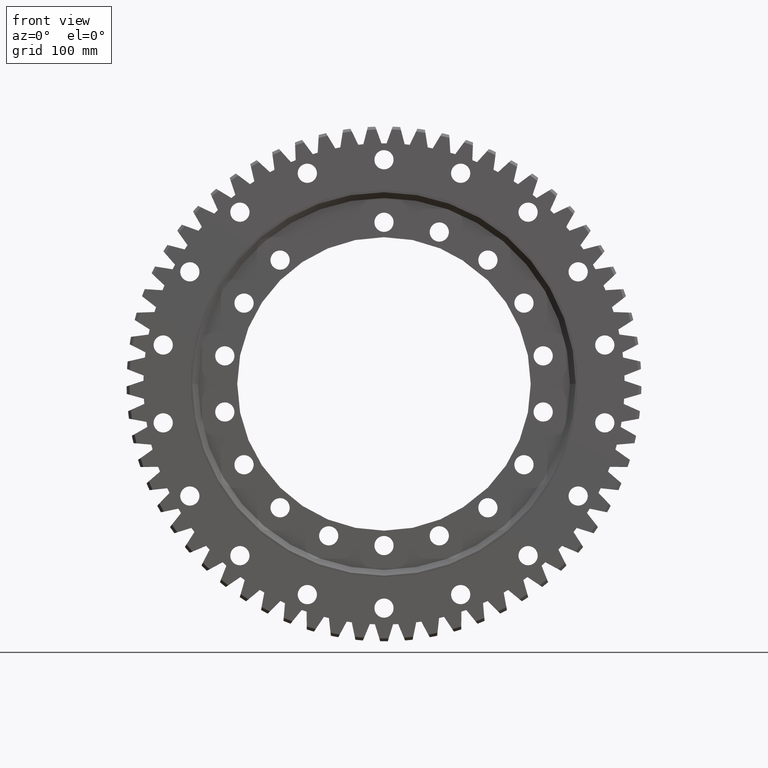
[diagram: clean part render]
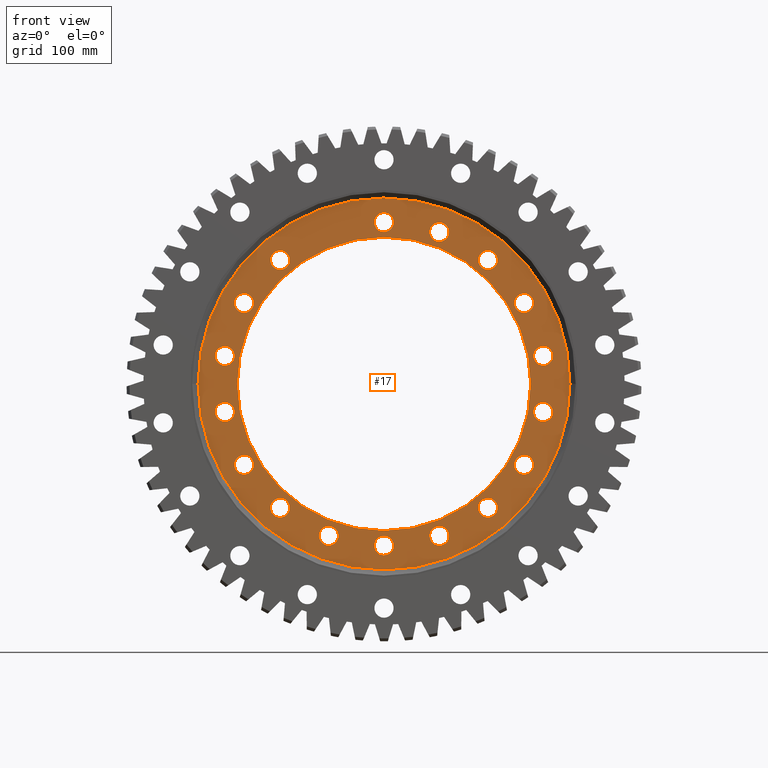
[diagram: same view with one face highlighted and labeled with its STEP entity id]
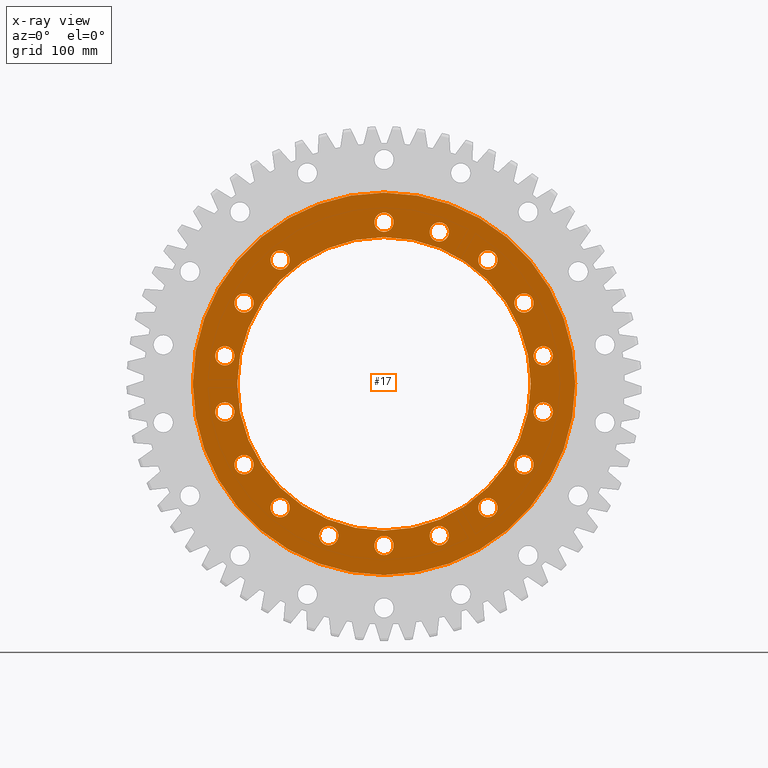
[diagram: x-ray of the same camera — body ghosted, the highlighted face saturated]
A machine part, front view. The second image highlights one B-rep face of the part: STEP entity #17.
The next image is the same camera in x-ray: the body ghosted, the highlighted face saturated — about 0% of this face is hidden behind the body in this view.
In plain terms, the highlighted planar face has unit normal (-0, 1, -0).
Its self-contained STEP definition (entity closure, byte-faithful):
#17 = ADVANCED_FACE ( 'NONE', ( #5292, #16943, #1394, #16480, #13088, #12618, #8698, #4825, #928, #16030, #12161, #8252, #4375, #458, #15564, #11697, #7790, #3907, #18977 ), #3150, .F. ) ;
#38 = CIRCLE ( 'NONE', #3823, 9.999999999999971600 ) ;
#111 = DIRECTION ( 'NONE',  ( 0.0000000000000000000, 1.000000000000000000, -2.727064569436390300E-017 ) ) ;
#274 = VERTEX_POINT ( 'NONE', #9477 ) ;
#458 = FACE_BOUND ( 'NONE', #2757, .T. ) ;
#460 = ORIENTED_EDGE ( 'NONE', *, *, #9680, .T. ) ;
#595 = CARTESIAN_POINT ( 'NONE',  ( -145.4922678357847000, -25.50000000000002100, 84.00000000000176200 ) ) ;
#618 = VERTEX_POINT ( 'NONE', #5491 ) ;
#641 = EDGE_CURVE ( 'NONE', #1531, #15459, #17155, .T. ) ;
#750 = EDGE_CURVE ( 'NONE', #4902, #16271, #11905, .T. ) ;
#794 = ORIENTED_EDGE ( 'NONE', *, *, #5059, .T. ) ;
#802 = CIRCLE ( 'NONE', #6848, 9.999999999999989300 ) ;
#923 = DIRECTION ( 'NONE',  ( 0.0000000000000000000, 1.000000000000000000, -2.727064569436389700E-017 ) ) ;
#928 = FACE_BOUND ( 'NONE', #5439, .T. ) ;
#985 = CARTESIAN_POINT ( 'NONE',  ( -107.9883184273369900, -25.50000000000002100, 128.6954664439897400 ) ) ;
#1008 = AXIS2_PLACEMENT_3D ( 'NONE', #9928, #7328, #11519 ) ;
#1009 = ORIENTED_EDGE ( 'NONE', *, *, #641, .T. ) ;
#1042 = VERTEX_POINT ( 'NONE', #14034 ) ;
#1123 = AXIS2_PLACEMENT_3D ( 'NONE', #1910, #12148, #3363 ) ;
#1189 = ORIENTED_EDGE ( 'NONE', *, *, #1873, .T. ) ;
#1221 = DIRECTION ( 'NONE',  ( -0.8660254037844392600, 0.0000000000000000000, 0.4999999999999988300 ) ) ;
#1225 = DIRECTION ( 'NONE',  ( 6.982962677686265100E-015, 0.0000000000000000000, -1.000000000000000000 ) ) ;
#1286 = AXIS2_PLACEMENT_3D ( 'NONE', #6918, #15651, #5442 ) ;
#1291 = CARTESIAN_POINT ( 'NONE',  ( 57.45938407871126000, -25.50000000000002800, -157.8683602920330300 ) ) ;
#1372 = CARTESIAN_POINT ( 'NONE',  ( 2.414735078559715900E-012, -25.50000000000002100, 168.0000000000000000 ) ) ;
#1389 = CIRCLE ( 'NONE', #1123, 9.999999999999987600 ) ;
#1394 = FACE_BOUND ( 'NONE', #16715, .T. ) ;
#1445 = CARTESIAN_POINT ( 'NONE',  ( 0.0000000000000000000, -25.50000000000001400, -1.507822983736319100E-016 ) ) ;
#1531 = VERTEX_POINT ( 'NONE', #6613 ) ;
#1641 = VERTEX_POINT ( 'NONE', #15567 ) ;
#1650 = CARTESIAN_POINT ( 'NONE',  ( -145.4922678357865500, -25.50000000000002800, -93.99999999999857900 ) ) ;
#1702 = VERTEX_POINT ( 'NONE', #15733 ) ;
#1739 = VERTEX_POINT ( 'NONE', #3107 ) ;
#1856 = EDGE_CURVE ( 'NONE', #2088, #12264, #15081, .T. ) ;
#1873 = EDGE_CURVE ( 'NONE', #16271, #4902, #10740, .T. ) ;
#1910 = CARTESIAN_POINT ( 'NONE',  ( -107.9883184273369900, -25.50000000000002100, 128.6954664439897400 ) ) ;
#1996 = CIRCLE ( 'NONE', #4237, 9.999999999999976900 ) ;
#2088 = VERTEX_POINT ( 'NONE', #16324 ) ;
#2153 = DIRECTION ( 'NONE',  ( -3.081487911019577400E-033, 1.000000000000000000, -2.727064569436389100E-017 ) ) ;
#2154 = CARTESIAN_POINT ( 'NONE',  ( 57.45938407871263800, -25.50000000000002100, 157.8683602920325500 ) ) ;
#2205 = ORIENTED_EDGE ( 'NONE', *, *, #14726, .T. ) ;
#2206 = EDGE_CURVE ( 'NONE', #7926, #3331, #13936, .T. ) ;
#2210 = EDGE_LOOP ( 'NONE', ( #10472, #7375 ) ) ;
#2228 = DIRECTION ( 'NONE',  ( -0.0000000000000000000, 1.000000000000000000, -2.727064569436389400E-017 ) ) ;
#2252 = CARTESIAN_POINT ( 'NONE',  ( -107.9883184273397900, -25.50000000000002800, -128.6954664439873300 ) ) ;
#2422 = AXIS2_PLACEMENT_3D ( 'NONE', #6902, #14061, #5425 ) ;
#2433 = CARTESIAN_POINT ( 'NONE',  ( 2.414735078559715900E-012, -25.50000000000002100, 178.0000000000000000 ) ) ;
#2445 = DIRECTION ( 'NONE',  ( -0.6427876096865398100, 0.0000000000000000000, 0.7660444431189775700 ) ) ;
#2551 = DIRECTION ( 'NONE',  ( -0.8660254037844361500, 0.0000000000000000000, -0.5000000000000042200 ) ) ;
#2563 = CIRCLE ( 'NONE', #2422, 9.999999999999984000 ) ;
#2576 = CIRCLE ( 'NONE', #5856, 9.999999999999985800 ) ;
#2667 = DIRECTION ( 'NONE',  ( -6.162975822039154700E-033, 1.000000000000000000, -2.727064569436390300E-017 ) ) ;
#2721 = CIRCLE ( 'NONE', #8746, 9.999999999999994700 ) ;
#2757 = EDGE_LOOP ( 'NONE', ( #2852, #2205 ) ) ;
#2758 = CARTESIAN_POINT ( 'NONE',  ( -1.241597348708423100E-012, -25.50000000000002800, -158.0000000000000300 ) ) ;
#2779 = ORIENTED_EDGE ( 'NONE', *, *, #13203, .T. ) ;
#2797 = EDGE_CURVE ( 'NONE', #3331, #7926, #38, .T. ) ;
#2852 = ORIENTED_EDGE ( 'NONE', *, *, #10921, .T. ) ;
#2893 = ORIENTED_EDGE ( 'NONE', *, *, #14474, .T. ) ;
#2899 = DIRECTION ( 'NONE',  ( 0.0000000000000000000, 2.275047181608927400E-017, 1.000000000000000000 ) ) ;
#2906 = AXIS2_PLACEMENT_3D ( 'NONE', #595, #14999, #9249 ) ;
#2955 = AXIS2_PLACEMENT_3D ( 'NONE', #10378, #8490, #12460 ) ;
#2987 = DIRECTION ( 'NONE',  ( -3.081487911019577400E-033, 1.000000000000000000, -2.727064569436389400E-017 ) ) ;
#3036 = CARTESIAN_POINT ( 'NONE',  ( 57.45938407871263800, -25.50000000000002100, 167.8683602920325200 ) ) ;
#3107 = CARTESIAN_POINT ( 'NONE',  ( 165.4477025060510600, -25.50000000000001400, 19.17289384804363900 ) ) ;
#3149 = EDGE_CURVE ( 'NONE', #11440, #14579, #13573, .T. ) ;
#3150 = PLANE ( 'NONE',  #14573 ) ;
#3257 = EDGE_LOOP ( 'NONE', ( #4701, #8301 ) ) ;
#3331 = VERTEX_POINT ( 'NONE', #7444 ) ;
#3334 = CARTESIAN_POINT ( 'NONE',  ( 145.4922678357859500, -25.50000000000002100, 83.99999999999960200 ) ) ;
#3356 = VERTEX_POINT ( 'NONE', #8944 ) ;
#3363 = DIRECTION ( 'NONE',  ( -0.6427876096865398100, 0.0000000000000000000, 0.7660444431189775700 ) ) ;
#3368 = DIRECTION ( 'NONE',  ( 9.244463733058732100E-033, 1.000000000000000000, -2.727064569436388400E-017 ) ) ;
#3411 = CARTESIAN_POINT ( 'NONE',  ( 145.4922678357852700, -25.50000000000002800, -74.00000000000076700 ) ) ;
#3427 = VERTEX_POINT ( 'NONE', #11462 ) ;
#3437 = CIRCLE ( 'NONE', #14192, 9.999999999999975100 ) ;
#3536 = ORIENTED_EDGE ( 'NONE', *, *, #1856, .T. ) ;
#3561 = DIRECTION ( 'NONE',  ( -3.081487911019577400E-033, 1.000000000000000000, -2.727064569436389700E-017 ) ) ;
#3660 = AXIS2_PLACEMENT_3D ( 'NONE', #12781, #8223, #16934 ) ;
#3743 = DIRECTION ( 'NONE',  ( 0.0000000000000000000, 1.000000000000000000, -2.727064569436389700E-017 ) ) ;
#3823 = AXIS2_PLACEMENT_3D ( 'NONE', #8082, #16838, #6629 ) ;
#3907 = FACE_OUTER_BOUND ( 'NONE', #12456, .T. ) ;
#3914 = AXIS2_PLACEMENT_3D ( 'NONE', #11765, #2987, #13257 ) ;
#4129 = AXIS2_PLACEMENT_3D ( 'NONE', #10915, #2153, #12410 ) ;
#4131 = CARTESIAN_POINT ( 'NONE',  ( -57.45938407871367600, -25.50000000000002800, -167.8683602920321500 ) ) ;
#4237 = AXIS2_PLACEMENT_3D ( 'NONE', #14105, #7854, #6015 ) ;
#4346 = CARTESIAN_POINT ( 'NONE',  ( 57.45938407871126000, -25.50000000000002800, -167.8683602920330000 ) ) ;
#4375 = FACE_BOUND ( 'NONE', #3257, .T. ) ;
#4503 = DIRECTION ( 'NONE',  ( 0.0000000000000000000, 1.000000000000000000, -2.727064569436389700E-017 ) ) ;
#4523 = ORIENTED_EDGE ( 'NONE', *, *, #9976, .T. ) ;
#4525 = EDGE_LOOP ( 'NONE', ( #10238, #5026 ) ) ;
#4536 = AXIS2_PLACEMENT_3D ( 'NONE', #17363, #8597, #18816 ) ;
#4701 = ORIENTED_EDGE ( 'NONE', *, *, #11972, .T. ) ;
#4825 = FACE_BOUND ( 'NONE', #17401, .T. ) ;
#4856 = CIRCLE ( 'NONE', #17380, 9.999999999999980500 ) ;
#4902 = VERTEX_POINT ( 'NONE', #17298 ) ;
#4959 = CARTESIAN_POINT ( 'NONE',  ( 145.4922678357859500, -25.50000000000002100, 73.99999999999961600 ) ) ;
#5026 = ORIENTED_EDGE ( 'NONE', *, *, #14336, .T. ) ;
#5059 = EDGE_CURVE ( 'NONE', #12264, #2088, #2721, .T. ) ;
#5069 = DIRECTION ( 'NONE',  ( 0.9848077530122096900, 0.0000000000000000000, -0.1736481776669207600 ) ) ;
#5101 = DIRECTION ( 'NONE',  ( 0.3420201433256563900, 0.0000000000000000000, 0.9396926207859128700 ) ) ;
#5103 = DIRECTION ( 'NONE',  ( 3.081487911019577400E-033, 1.000000000000000000, -2.727064569436389400E-017 ) ) ;
#5104 = AXIS2_PLACEMENT_3D ( 'NONE', #1372, #10131, #18859 ) ;
#5120 = EDGE_LOOP ( 'NONE', ( #4523, #17926 ) ) ;
#5161 = CARTESIAN_POINT ( 'NONE',  ( 107.9883184273389100, -25.50000000000002100, 118.6954664439881200 ) ) ;
#5168 = CARTESIAN_POINT ( 'NONE',  ( -165.4477025060506600, -25.50000000000001400, 19.17289384804619700 ) ) ;
#5210 = AXIS2_PLACEMENT_3D ( 'NONE', #7479, #17698, #8936 ) ;
#5286 = EDGE_LOOP ( 'NONE', ( #11060, #11162 ) ) ;
#5292 = FACE_BOUND ( 'NONE', #15626, .T. ) ;
#5307 = CARTESIAN_POINT ( 'NONE',  ( 145.4922678357859500, -25.50000000000002100, 93.99999999999958800 ) ) ;
#5414 = VERTEX_POINT ( 'NONE', #13891 ) ;
#5425 = DIRECTION ( 'NONE',  ( -0.9848077530122084600, 0.0000000000000000000, 0.1736481776669275000 ) ) ;
#5439 = EDGE_LOOP ( 'NONE', ( #1189, #14994 ) ) ;
#5442 = DIRECTION ( 'NONE',  ( -0.3420201433256628300, 0.0000000000000000000, -0.9396926207859105400 ) ) ;
#5491 = CARTESIAN_POINT ( 'NONE',  ( 2.433985513305364900E-014, -25.50000000000002800, -198.7500000000000300 ) ) ;
#5509 = VERTEX_POINT ( 'NONE', #11046 ) ;
#5547 = CIRCLE ( 'NONE', #11139, 9.999999999999976900 ) ;
#5560 = AXIS2_PLACEMENT_3D ( 'NONE', #6540, #15291, #5069 ) ;
#5687 = ORIENTED_EDGE ( 'NONE', *, *, #18820, .T. ) ;
#5736 = DIRECTION ( 'NONE',  ( 0.0000000000000000000, 3.491267373035082700E-017, 1.000000000000000000 ) ) ;
#5740 = DIRECTION ( 'NONE',  ( 0.0000000000000000000, 1.000000000000000000, -2.727064569436389400E-017 ) ) ;
#5786 = VERTEX_POINT ( 'NONE', #8030 ) ;
#5852 = EDGE_CURVE ( 'NONE', #1702, #10489, #15051, .T. ) ;
#5856 = AXIS2_PLACEMENT_3D ( 'NONE', #13818, #3561, #12352 ) ;
#5876 = VERTEX_POINT ( 'NONE', #13635 ) ;
#5946 = AXIS2_PLACEMENT_3D ( 'NONE', #11106, #10735, #6710 ) ;
#5960 = VERTEX_POINT ( 'NONE', #2758 ) ;
#6015 = DIRECTION ( 'NONE',  ( 0.9848077530122063500, 0.0000000000000000000, 0.1736481776669404600 ) ) ;
#6037 = ORIENTED_EDGE ( 'NONE', *, *, #9496, .T. ) ;
#6092 = VERTEX_POINT ( 'NONE', #18165 ) ;
#6183 = CIRCLE ( 'NONE', #16745, 9.999999999999980500 ) ;
#6260 = EDGE_CURVE ( 'NONE', #6685, #14227, #15823, .T. ) ;
#6417 = EDGE_CURVE ( 'NONE', #9583, #618, #18312, .T. ) ;
#6428 = CARTESIAN_POINT ( 'NONE',  ( -145.4922678357865500, -25.50000000000002800, -83.99999999999860700 ) ) ;
#6540 = CARTESIAN_POINT ( 'NONE',  ( 165.4477025060508300, -25.50000000000001400, -29.17289384804506000 ) ) ;
#6550 = ORIENTED_EDGE ( 'NONE', *, *, #13133, .T. ) ;
#6579 = EDGE_CURVE ( 'NONE', #6688, #3427, #15129, .T. ) ;
#6593 = AXIS2_PLACEMENT_3D ( 'NONE', #18707, #9972, #1225 ) ;
#6607 = CIRCLE ( 'NONE', #9997, 9.999999999999975100 ) ;
#6613 = CARTESIAN_POINT ( 'NONE',  ( 0.0000000000000000000, -25.50000000000001100, 152.5000000000000000 ) ) ;
#6629 = DIRECTION ( 'NONE',  ( 0.9848077530122096900, 0.0000000000000000000, -0.1736481776669207600 ) ) ;
#6685 = VERTEX_POINT ( 'NONE', #4131 ) ;
#6688 = VERTEX_POINT ( 'NONE', #2433 ) ;
#6710 = DIRECTION ( 'NONE',  ( -0.6427876096865351400, 0.0000000000000000000, -0.7660444431189815700 ) ) ;
#6848 = AXIS2_PLACEMENT_3D ( 'NONE', #17056, #8296, #18509 ) ;
#6902 = CARTESIAN_POINT ( 'NONE',  ( -165.4477025060506600, -25.50000000000001400, 29.17289384804617600 ) ) ;
#6918 = CARTESIAN_POINT ( 'NONE',  ( -57.45938407871367600, -25.50000000000002800, -157.8683602920321500 ) ) ;
#7205 = EDGE_CURVE ( 'NONE', #14321, #6092, #3437, .T. ) ;
#7275 = ORIENTED_EDGE ( 'NONE', *, *, #7520, .T. ) ;
#7328 = DIRECTION ( 'NONE',  ( 3.081487911019577400E-033, 1.000000000000000000, -2.727064569436389400E-017 ) ) ;
#7375 = ORIENTED_EDGE ( 'NONE', *, *, #11884, .T. ) ;
#7378 = CIRCLE ( 'NONE', #12614, 152.5000000000000000 ) ;
#7444 = CARTESIAN_POINT ( 'NONE',  ( 165.4477025060508300, -25.50000000000001400, -19.17289384804507800 ) ) ;
#7479 = CARTESIAN_POINT ( 'NONE',  ( -57.45938407871367600, -25.50000000000002800, -157.8683602920321500 ) ) ;
#7520 = EDGE_CURVE ( 'NONE', #1641, #12341, #6183, .T. ) ;
#7758 = ORIENTED_EDGE ( 'NONE', *, *, #6417, .F. ) ;
#7790 = FACE_BOUND ( 'NONE', #13129, .T. ) ;
#7854 = DIRECTION ( 'NONE',  ( -3.081487911019577400E-033, 1.000000000000000000, -2.727064569436389400E-017 ) ) ;
#7895 = ORIENTED_EDGE ( 'NONE', *, *, #8059, .T. ) ;
#7926 = VERTEX_POINT ( 'NONE', #8526 ) ;
#7938 = VERTEX_POINT ( 'NONE', #12459 ) ;
#7958 = EDGE_CURVE ( 'NONE', #3427, #6688, #7982, .T. ) ;
#7982 = CIRCLE ( 'NONE', #16024, 9.999999999999980500 ) ;
#8030 = CARTESIAN_POINT ( 'NONE',  ( 165.4477025060510600, -25.50000000000001400, 39.17289384804360000 ) ) ;
#8059 = EDGE_CURVE ( 'NONE', #3356, #16026, #10045, .T. ) ;
#8082 = CARTESIAN_POINT ( 'NONE',  ( 165.4477025060508300, -25.50000000000001400, -29.17289384804506000 ) ) ;
#8097 = ORIENTED_EDGE ( 'NONE', *, *, #13974, .T. ) ;
#8223 = DIRECTION ( 'NONE',  ( -0.0000000000000000000, 1.000000000000000000, -2.727064569436389400E-017 ) ) ;
#8252 = FACE_BOUND ( 'NONE', #4525, .T. ) ;
#8283 = AXIS2_PLACEMENT_3D ( 'NONE', #12667, #2667, #11446 ) ;
#8296 = DIRECTION ( 'NONE',  ( -3.081487911019577400E-033, 1.000000000000000000, -2.727064569436389100E-017 ) ) ;
#8301 = ORIENTED_EDGE ( 'NONE', *, *, #3149, .T. ) ;
#8490 = DIRECTION ( 'NONE',  ( 0.0000000000000000000, 1.000000000000000000, -2.727064569436390300E-017 ) ) ;
#8495 = CIRCLE ( 'NONE', #3914, 9.999999999999976900 ) ;
#8526 = CARTESIAN_POINT ( 'NONE',  ( 165.4477025060508300, -25.50000000000001400, -39.17289384804504200 ) ) ;
#8597 = DIRECTION ( 'NONE',  ( -6.162975822039154700E-033, 1.000000000000000000, -2.727064569436390300E-017 ) ) ;
#8698 = FACE_BOUND ( 'NONE', #14289, .T. ) ;
#8746 = AXIS2_PLACEMENT_3D ( 'NONE', #17937, #10263, #11017 ) ;
#8768 = EDGE_LOOP ( 'NONE', ( #2893, #2779 ) ) ;
#8832 = CIRCLE ( 'NONE', #5210, 9.999999999999984000 ) ;
#8936 = DIRECTION ( 'NONE',  ( -0.3420201433256628300, 0.0000000000000000000, -0.9396926207859105400 ) ) ;
#8944 = CARTESIAN_POINT ( 'NONE',  ( -145.4922678357847000, -25.50000000000002100, 94.00000000000174800 ) ) ;
#9190 = CARTESIAN_POINT ( 'NONE',  ( 2.414735078559715900E-012, -25.50000000000002100, 168.0000000000000000 ) ) ;
#9220 = ORIENTED_EDGE ( 'NONE', *, *, #17402, .T. ) ;
#9249 = DIRECTION ( 'NONE',  ( -0.8660254037844392600, 0.0000000000000000000, 0.4999999999999988300 ) ) ;
#9477 = CARTESIAN_POINT ( 'NONE',  ( 57.45938407871263800, -25.50000000000002100, 147.8683602920325800 ) ) ;
#9480 = EDGE_CURVE ( 'NONE', #5786, #1739, #1996, .T. ) ;
#9493 = ORIENTED_EDGE ( 'NONE', *, *, #17354, .T. ) ;
#9496 = EDGE_CURVE ( 'NONE', #14227, #6685, #8832, .T. ) ;
#9566 = CARTESIAN_POINT ( 'NONE',  ( 0.0000000000000000000, -25.50000000000002100, -1.507822983736317100E-016 ) ) ;
#9583 = VERTEX_POINT ( 'NONE', #10563 ) ;
#9637 = CARTESIAN_POINT ( 'NONE',  ( 57.45938407871263800, -25.50000000000002100, 157.8683602920325500 ) ) ;
#9680 = EDGE_CURVE ( 'NONE', #12341, #1641, #14352, .T. ) ;
#9774 = VERTEX_POINT ( 'NONE', #3411 ) ;
#9863 = CARTESIAN_POINT ( 'NONE',  ( -165.4477025060512900, -25.50000000000001400, -39.17289384804252700 ) ) ;
#9928 = CARTESIAN_POINT ( 'NONE',  ( -165.4477025060512900, -25.50000000000001400, -29.17289384804254100 ) ) ;
#9936 = CIRCLE ( 'NONE', #8283, 9.999999999999989300 ) ;
#9963 = DIRECTION ( 'NONE',  ( 3.081487911019577400E-033, 1.000000000000000000, -2.727064569436389700E-017 ) ) ;
#9972 = DIRECTION ( 'NONE',  ( -2.189528850507526700E-047, 1.000000000000000000, -2.727064569436389100E-017 ) ) ;
#9976 = EDGE_CURVE ( 'NONE', #10489, #1702, #15932, .T. ) ;
#9997 = AXIS2_PLACEMENT_3D ( 'NONE', #12520, #3743, #13999 ) ;
#10015 = EDGE_CURVE ( 'NONE', #618, #9583, #17971, .T. ) ;
#10045 = CIRCLE ( 'NONE', #2906, 9.999999999999976900 ) ;
#10131 = DIRECTION ( 'NONE',  ( 0.0000000000000000000, 1.000000000000000000, -2.727064569436389700E-017 ) ) ;
#10178 = CARTESIAN_POINT ( 'NONE',  ( 0.0000000000000000000, -25.50000000000002100, -1.507822983736317100E-016 ) ) ;
#10191 = AXIS2_PLACEMENT_3D ( 'NONE', #985, #11221, #2445 ) ;
#10206 = DIRECTION ( 'NONE',  ( -0.6427876096865351400, 0.0000000000000000000, -0.7660444431189815700 ) ) ;
#10229 = EDGE_LOOP ( 'NONE', ( #7275, #460 ) ) ;
#10238 = ORIENTED_EDGE ( 'NONE', *, *, #9480, .T. ) ;
#10263 = DIRECTION ( 'NONE',  ( 3.081487911019577400E-033, 1.000000000000000000, -2.727064569436389400E-017 ) ) ;
#10373 = CARTESIAN_POINT ( 'NONE',  ( -145.4922678357865500, -25.50000000000002800, -83.99999999999860700 ) ) ;
#10378 = CARTESIAN_POINT ( 'NONE',  ( 107.9883184273378300, -25.50000000000002800, -128.6954664439889800 ) ) ;
#10454 = EDGE_LOOP ( 'NONE', ( #9493, #5687 ) ) ;
#10472 = ORIENTED_EDGE ( 'NONE', *, *, #13417, .T. ) ;
#10484 = ORIENTED_EDGE ( 'NONE', *, *, #10015, .F. ) ;
#10489 = VERTEX_POINT ( 'NONE', #16726 ) ;
#10514 = DIRECTION ( 'NONE',  ( 0.8660254037844330500, 0.0000000000000000000, 0.5000000000000095500 ) ) ;
#10550 = AXIS2_PLACEMENT_3D ( 'NONE', #16915, #111, #14820 ) ;
#10563 = CARTESIAN_POINT ( 'NONE',  ( 0.0000000000000000000, -25.50000000000001400, 198.7500000000000300 ) ) ;
#10567 = VERTEX_POINT ( 'NONE', #5161 ) ;
#10715 = CARTESIAN_POINT ( 'NONE',  ( 107.9883184273378300, -25.50000000000002800, -118.6954664439889800 ) ) ;
#10735 = DIRECTION ( 'NONE',  ( 0.0000000000000000000, 1.000000000000000000, -2.727064569436389400E-017 ) ) ;
#10740 = CIRCLE ( 'NONE', #2955, 9.999999999999980500 ) ;
#10747 = CIRCLE ( 'NONE', #10191, 9.999999999999987600 ) ;
#10868 = CIRCLE ( 'NONE', #6593, 9.999999999999980500 ) ;
#10915 = CARTESIAN_POINT ( 'NONE',  ( 145.4922678357852700, -25.50000000000002800, -84.00000000000075300 ) ) ;
#10921 = EDGE_CURVE ( 'NONE', #18193, #10567, #9936, .T. ) ;
#10990 = DIRECTION ( 'NONE',  ( 0.0000000000000000000, 3.491267373035082700E-017, 1.000000000000000000 ) ) ;
#11017 = DIRECTION ( 'NONE',  ( -0.9848077530122074700, 0.0000000000000000000, -0.1736481776669339100 ) ) ;
#11046 = CARTESIAN_POINT ( 'NONE',  ( -107.9883184273369900, -25.50000000000002100, 138.6954664439897200 ) ) ;
#11060 = ORIENTED_EDGE ( 'NONE', *, *, #2797, .T. ) ;
#11106 = CARTESIAN_POINT ( 'NONE',  ( -107.9883184273397900, -25.50000000000002800, -128.6954664439873300 ) ) ;
#11139 = AXIS2_PLACEMENT_3D ( 'NONE', #18700, #9963, #1221 ) ;
#11162 = ORIENTED_EDGE ( 'NONE', *, *, #2206, .T. ) ;
#11221 = DIRECTION ( 'NONE',  ( 3.081487911019577400E-033, 1.000000000000000000, -2.727064569436390000E-017 ) ) ;
#11324 = DIRECTION ( 'NONE',  ( 9.244463733058732100E-033, 1.000000000000000000, -2.727064569436388400E-017 ) ) ;
#11440 = VERTEX_POINT ( 'NONE', #4959 ) ;
#11446 = DIRECTION ( 'NONE',  ( 0.6427876096865299300, 0.0000000000000000000, 0.7660444431189857900 ) ) ;
#11462 = CARTESIAN_POINT ( 'NONE',  ( 2.415959725358863100E-012, -25.50000000000002100, 158.0000000000000300 ) ) ;
#11519 = DIRECTION ( 'NONE',  ( -0.9848077530122074700, 0.0000000000000000000, -0.1736481776669339100 ) ) ;
#11681 = DIRECTION ( 'NONE',  ( -0.0000000000000000000, 1.000000000000000000, -2.727064569436389400E-017 ) ) ;
#11697 = FACE_BOUND ( 'NONE', #17757, .T. ) ;
#11742 = CIRCLE ( 'NONE', #14076, 9.999999999999989300 ) ;
#11765 = CARTESIAN_POINT ( 'NONE',  ( 165.4477025060510600, -25.50000000000001400, 29.17289384804362100 ) ) ;
#11828 = ORIENTED_EDGE ( 'NONE', *, *, #16443, .T. ) ;
#11884 = EDGE_CURVE ( 'NONE', #274, #17692, #11742, .T. ) ;
#11905 = CIRCLE ( 'NONE', #10550, 9.999999999999980500 ) ;
#11939 = VERTEX_POINT ( 'NONE', #5168 ) ;
#11972 = EDGE_CURVE ( 'NONE', #14579, #11440, #2576, .T. ) ;
#12148 = DIRECTION ( 'NONE',  ( 3.081487911019577400E-033, 1.000000000000000000, -2.727064569436390000E-017 ) ) ;
#12161 = FACE_BOUND ( 'NONE', #5286, .T. ) ;
#12264 = VERTEX_POINT ( 'NONE', #9863 ) ;
#12300 = AXIS2_PLACEMENT_3D ( 'NONE', #3334, #13596, #10514 ) ;
#12341 = VERTEX_POINT ( 'NONE', #1650 ) ;
#12352 = DIRECTION ( 'NONE',  ( 0.8660254037844330500, 0.0000000000000000000, 0.5000000000000095500 ) ) ;
#12410 = DIRECTION ( 'NONE',  ( 0.8660254037844437000, 0.0000000000000000000, -0.4999999999999912800 ) ) ;
#12456 = EDGE_LOOP ( 'NONE', ( #7758, #10484 ) ) ;
#12459 = CARTESIAN_POINT ( 'NONE',  ( -107.9883184273369900, -25.50000000000002100, 118.6954664439897600 ) ) ;
#12460 = DIRECTION ( 'NONE',  ( 0.6427876096865458000, 0.0000000000000000000, -0.7660444431189726800 ) ) ;
#12520 = CARTESIAN_POINT ( 'NONE',  ( 57.45938407871126000, -25.50000000000002800, -157.8683602920330300 ) ) ;
#12614 = AXIS2_PLACEMENT_3D ( 'NONE', #1445, #11681, #2899 ) ;
#12618 = FACE_BOUND ( 'NONE', #16405, .T. ) ;
#12667 = CARTESIAN_POINT ( 'NONE',  ( 107.9883184273389100, -25.50000000000002100, 128.6954664439881000 ) ) ;
#12693 = ORIENTED_EDGE ( 'NONE', *, *, #18301, .T. ) ;
#12752 = AXIS2_PLACEMENT_3D ( 'NONE', #13876, #5103, #15330 ) ;
#12781 = CARTESIAN_POINT ( 'NONE',  ( 0.0000000000000000000, -25.50000000000001400, -1.507822983736319100E-016 ) ) ;
#13086 = DIRECTION ( 'NONE',  ( 0.0000000000000000000, 2.727064569436389400E-017, 1.000000000000000000 ) ) ;
#13088 = FACE_BOUND ( 'NONE', #5120, .T. ) ;
#13129 = EDGE_LOOP ( 'NONE', ( #15283, #13511 ) ) ;
#13133 = EDGE_CURVE ( 'NONE', #15459, #1531, #7378, .T. ) ;
#13203 = EDGE_CURVE ( 'NONE', #11939, #5414, #2563, .T. ) ;
#13257 = DIRECTION ( 'NONE',  ( 0.9848077530122063500, 0.0000000000000000000, 0.1736481776669404600 ) ) ;
#13288 = DIRECTION ( 'NONE',  ( 0.3420201433256756000, 0.0000000000000000000, -0.9396926207859058700 ) ) ;
#13320 = CIRCLE ( 'NONE', #4536, 9.999999999999989300 ) ;
#13417 = EDGE_CURVE ( 'NONE', #17692, #274, #18774, .T. ) ;
#13511 = ORIENTED_EDGE ( 'NONE', *, *, #7958, .T. ) ;
#13573 = CIRCLE ( 'NONE', #12300, 9.999999999999985800 ) ;
#13596 = DIRECTION ( 'NONE',  ( -3.081487911019577400E-033, 1.000000000000000000, -2.727064569436389700E-017 ) ) ;
#13635 = CARTESIAN_POINT ( 'NONE',  ( -1.240372701909275700E-012, -25.50000000000002800, -178.0000000000000000 ) ) ;
#13818 = CARTESIAN_POINT ( 'NONE',  ( 145.4922678357859500, -25.50000000000002100, 83.99999999999960200 ) ) ;
#13876 = CARTESIAN_POINT ( 'NONE',  ( -165.4477025060506600, -25.50000000000001400, 29.17289384804617600 ) ) ;
#13891 = CARTESIAN_POINT ( 'NONE',  ( -165.4477025060506600, -25.50000000000001400, 39.17289384804615800 ) ) ;
#13936 = CIRCLE ( 'NONE', #5560, 9.999999999999971600 ) ;
#13974 = EDGE_CURVE ( 'NONE', #5960, #5876, #4856, .T. ) ;
#13999 = DIRECTION ( 'NONE',  ( 0.3420201433256756000, 0.0000000000000000000, -0.9396926207859058700 ) ) ;
#14003 = CIRCLE ( 'NONE', #12752, 9.999999999999984000 ) ;
#14034 = CARTESIAN_POINT ( 'NONE',  ( 145.4922678357852700, -25.50000000000002800, -94.00000000000073900 ) ) ;
#14044 = AXIS2_PLACEMENT_3D ( 'NONE', #6428, #3368, #14763 ) ;
#14061 = DIRECTION ( 'NONE',  ( 3.081487911019577400E-033, 1.000000000000000000, -2.727064569436389400E-017 ) ) ;
#14076 = AXIS2_PLACEMENT_3D ( 'NONE', #9637, #15018, #16667 ) ;
#14092 = CARTESIAN_POINT ( 'NONE',  ( 107.9883184273389100, -25.50000000000002100, 138.6954664439881000 ) ) ;
#14105 = CARTESIAN_POINT ( 'NONE',  ( 165.4477025060510600, -25.50000000000001400, 29.17289384804362100 ) ) ;
#14192 = AXIS2_PLACEMENT_3D ( 'NONE', #1291, #4503, #13288 ) ;
#14217 = EDGE_CURVE ( 'NONE', #16026, #3356, #5547, .T. ) ;
#14227 = VERTEX_POINT ( 'NONE', #15784 ) ;
#14289 = EDGE_LOOP ( 'NONE', ( #8097, #12693 ) ) ;
#14321 = VERTEX_POINT ( 'NONE', #4346 ) ;
#14336 = EDGE_CURVE ( 'NONE', #1739, #5786, #8495, .T. ) ;
#14352 = CIRCLE ( 'NONE', #14044, 9.999999999999980500 ) ;
#14427 = DIRECTION ( 'NONE',  ( 0.0000000000000000000, 0.0000000000000000000, 1.000000000000000000 ) ) ;
#14474 = EDGE_CURVE ( 'NONE', #5414, #11939, #14003, .T. ) ;
#14573 = AXIS2_PLACEMENT_3D ( 'NONE', #17457, #17045, #13086 ) ;
#14579 = VERTEX_POINT ( 'NONE', #5307 ) ;
#14726 = EDGE_CURVE ( 'NONE', #10567, #18193, #13320, .T. ) ;
#14763 = DIRECTION ( 'NONE',  ( -0.8660254037844361500, 0.0000000000000000000, -0.5000000000000042200 ) ) ;
#14820 = DIRECTION ( 'NONE',  ( 0.6427876096865458000, 0.0000000000000000000, -0.7660444431189726800 ) ) ;
#14994 = ORIENTED_EDGE ( 'NONE', *, *, #750, .T. ) ;
#14999 = DIRECTION ( 'NONE',  ( 3.081487911019577400E-033, 1.000000000000000000, -2.727064569436389700E-017 ) ) ;
#15006 = AXIS2_PLACEMENT_3D ( 'NONE', #10178, #2228, #10990 ) ;
#15018 = DIRECTION ( 'NONE',  ( -1.540743955509788700E-033, 1.000000000000000000, -2.727064569436390300E-017 ) ) ;
#15051 = CIRCLE ( 'NONE', #5946, 9.999999999999973400 ) ;
#15081 = CIRCLE ( 'NONE', #1008, 9.999999999999994700 ) ;
#15129 = CIRCLE ( 'NONE', #5104, 9.999999999999980500 ) ;
#15283 = ORIENTED_EDGE ( 'NONE', *, *, #6579, .T. ) ;
#15291 = DIRECTION ( 'NONE',  ( -3.081487911019577400E-033, 1.000000000000000000, -2.727064569436389400E-017 ) ) ;
#15325 = DIRECTION ( 'NONE',  ( -1.540743955509788700E-033, 1.000000000000000000, -2.727064569436390300E-017 ) ) ;
#15330 = DIRECTION ( 'NONE',  ( -0.9848077530122084600, 0.0000000000000000000, 0.1736481776669275000 ) ) ;
#15459 = VERTEX_POINT ( 'NONE', #17010 ) ;
#15564 = FACE_BOUND ( 'NONE', #2210, .T. ) ;
#15567 = CARTESIAN_POINT ( 'NONE',  ( -145.4922678357865500, -25.50000000000002800, -73.99999999999862200 ) ) ;
#15617 = AXIS2_PLACEMENT_3D ( 'NONE', #2252, #5740, #10206 ) ;
#15626 = EDGE_LOOP ( 'NONE', ( #7895, #16169 ) ) ;
#15651 = DIRECTION ( 'NONE',  ( 1.540743955509788700E-033, 1.000000000000000000, -2.727064569436388400E-017 ) ) ;
#15733 = CARTESIAN_POINT ( 'NONE',  ( -107.9883184273397900, -25.50000000000002800, -138.6954664439873000 ) ) ;
#15745 = CIRCLE ( 'NONE', #4129, 9.999999999999989300 ) ;
#15784 = CARTESIAN_POINT ( 'NONE',  ( -57.45938407871367600, -25.50000000000002800, -147.8683602920321800 ) ) ;
#15823 = CIRCLE ( 'NONE', #1286, 9.999999999999984000 ) ;
#15849 = EDGE_CURVE ( 'NONE', #5509, #7938, #1389, .T. ) ;
#15932 = CIRCLE ( 'NONE', #15617, 9.999999999999973400 ) ;
#15948 = ORIENTED_EDGE ( 'NONE', *, *, #7205, .T. ) ;
#15949 = DIRECTION ( 'NONE',  ( -0.0000000000000000000, 1.000000000000000000, -2.727064569436389400E-017 ) ) ;
#16024 = AXIS2_PLACEMENT_3D ( 'NONE', #9190, #923, #14427 ) ;
#16026 = VERTEX_POINT ( 'NONE', #18814 ) ;
#16030 = FACE_BOUND ( 'NONE', #10454, .T. ) ;
#16134 = ORIENTED_EDGE ( 'NONE', *, *, #15849, .T. ) ;
#16156 = AXIS2_PLACEMENT_3D ( 'NONE', #2154, #15325, #5101 ) ;
#16169 = ORIENTED_EDGE ( 'NONE', *, *, #14217, .T. ) ;
#16271 = VERTEX_POINT ( 'NONE', #10715 ) ;
#16324 = CARTESIAN_POINT ( 'NONE',  ( -165.4477025060512900, -25.50000000000001400, -19.17289384804255900 ) ) ;
#16367 = DIRECTION ( 'NONE',  ( 6.982962677686265100E-015, 0.0000000000000000000, -1.000000000000000000 ) ) ;
#16405 = EDGE_LOOP ( 'NONE', ( #6037, #18846 ) ) ;
#16443 = EDGE_CURVE ( 'NONE', #7938, #5509, #10747, .T. ) ;
#16480 = FACE_BOUND ( 'NONE', #10229, .T. ) ;
#16667 = DIRECTION ( 'NONE',  ( 0.3420201433256563900, 0.0000000000000000000, 0.9396926207859128700 ) ) ;
#16715 = EDGE_LOOP ( 'NONE', ( #3536, #794 ) ) ;
#16726 = CARTESIAN_POINT ( 'NONE',  ( -107.9883184273397900, -25.50000000000002800, -118.6954664439873400 ) ) ;
#16745 = AXIS2_PLACEMENT_3D ( 'NONE', #10373, #11324, #2551 ) ;
#16838 = DIRECTION ( 'NONE',  ( -3.081487911019577400E-033, 1.000000000000000000, -2.727064569436389400E-017 ) ) ;
#16915 = CARTESIAN_POINT ( 'NONE',  ( 107.9883184273378300, -25.50000000000002800, -128.6954664439889800 ) ) ;
#16934 = DIRECTION ( 'NONE',  ( 0.0000000000000000000, 2.275047181608927400E-017, 1.000000000000000000 ) ) ;
#16943 = FACE_BOUND ( 'NONE', #8768, .T. ) ;
#17010 = CARTESIAN_POINT ( 'NONE',  ( 1.867586368699713500E-014, -25.50000000000001800, -152.5000000000000000 ) ) ;
#17045 = DIRECTION ( 'NONE',  ( -0.0000000000000000000, 1.000000000000000000, -2.727064569436389400E-017 ) ) ;
#17056 = CARTESIAN_POINT ( 'NONE',  ( 145.4922678357852700, -25.50000000000002800, -84.00000000000075300 ) ) ;
#17155 = CIRCLE ( 'NONE', #3660, 152.5000000000000000 ) ;
#17298 = CARTESIAN_POINT ( 'NONE',  ( 107.9883184273378300, -25.50000000000002800, -138.6954664439889500 ) ) ;
#17354 = EDGE_CURVE ( 'NONE', #9774, #1042, #15745, .T. ) ;
#17363 = CARTESIAN_POINT ( 'NONE',  ( 107.9883184273389100, -25.50000000000002100, 128.6954664439881000 ) ) ;
#17380 = AXIS2_PLACEMENT_3D ( 'NONE', #17896, #17828, #16367 ) ;
#17401 = EDGE_LOOP ( 'NONE', ( #9220, #15948 ) ) ;
#17402 = EDGE_CURVE ( 'NONE', #6092, #14321, #6607, .T. ) ;
#17457 = CARTESIAN_POINT ( 'NONE',  ( 0.0000000000000000000, -25.50000000000001100, 152.5000000000000000 ) ) ;
#17566 = AXIS2_PLACEMENT_3D ( 'NONE', #9566, #15949, #5736 ) ;
#17590 = EDGE_LOOP ( 'NONE', ( #1009, #6550 ) ) ;
#17692 = VERTEX_POINT ( 'NONE', #3036 ) ;
#17698 = DIRECTION ( 'NONE',  ( 1.540743955509788700E-033, 1.000000000000000000, -2.727064569436388400E-017 ) ) ;
#17757 = EDGE_LOOP ( 'NONE', ( #16134, #11828 ) ) ;
#17828 = DIRECTION ( 'NONE',  ( -2.189528850507526700E-047, 1.000000000000000000, -2.727064569436389100E-017 ) ) ;
#17896 = CARTESIAN_POINT ( 'NONE',  ( -1.241597348708423100E-012, -25.50000000000002800, -168.0000000000000000 ) ) ;
#17926 = ORIENTED_EDGE ( 'NONE', *, *, #5852, .T. ) ;
#17937 = CARTESIAN_POINT ( 'NONE',  ( -165.4477025060512900, -25.50000000000001400, -29.17289384804254100 ) ) ;
#17971 = CIRCLE ( 'NONE', #17566, 198.7500000000000300 ) ;
#18165 = CARTESIAN_POINT ( 'NONE',  ( 57.45938407871126000, -25.50000000000002800, -147.8683602920330300 ) ) ;
#18193 = VERTEX_POINT ( 'NONE', #14092 ) ;
#18301 = EDGE_CURVE ( 'NONE', #5876, #5960, #10868, .T. ) ;
#18312 = CIRCLE ( 'NONE', #15006, 198.7500000000000300 ) ;
#18509 = DIRECTION ( 'NONE',  ( 0.8660254037844437000, 0.0000000000000000000, -0.4999999999999912800 ) ) ;
#18700 = CARTESIAN_POINT ( 'NONE',  ( -145.4922678357847000, -25.50000000000002100, 84.00000000000176200 ) ) ;
#18707 = CARTESIAN_POINT ( 'NONE',  ( -1.241597348708423100E-012, -25.50000000000002800, -168.0000000000000000 ) ) ;
#18774 = CIRCLE ( 'NONE', #16156, 9.999999999999989300 ) ;
#18814 = CARTESIAN_POINT ( 'NONE',  ( -145.4922678357847000, -25.50000000000002100, 74.00000000000179100 ) ) ;
#18816 = DIRECTION ( 'NONE',  ( 0.6427876096865299300, 0.0000000000000000000, 0.7660444431189857900 ) ) ;
#18820 = EDGE_CURVE ( 'NONE', #1042, #9774, #802, .T. ) ;
#18846 = ORIENTED_EDGE ( 'NONE', *, *, #6260, .T. ) ;
#18859 = DIRECTION ( 'NONE',  ( 0.0000000000000000000, 0.0000000000000000000, 1.000000000000000000 ) ) ;
#18977 = FACE_BOUND ( 'NONE', #17590, .T. ) ;